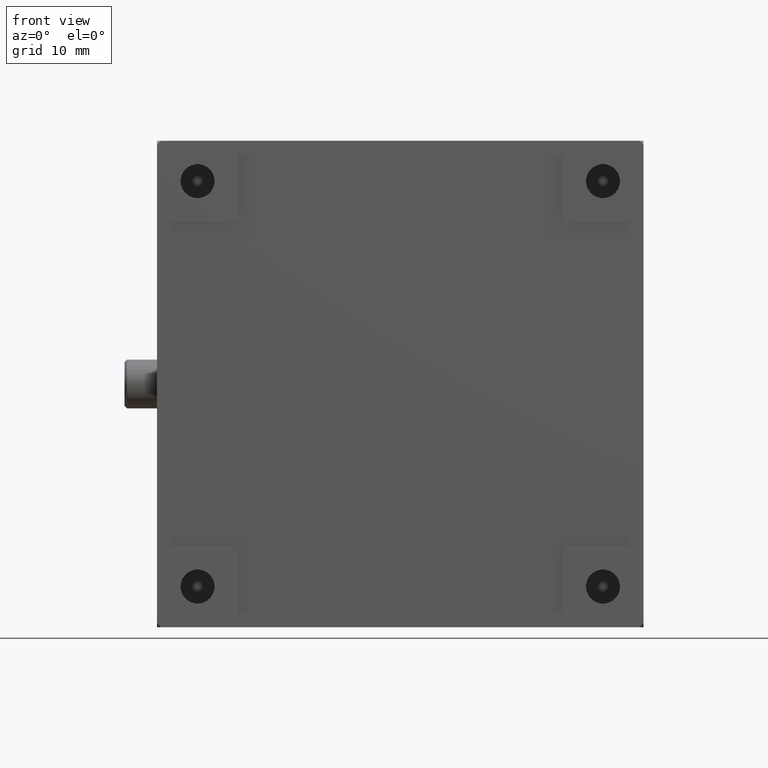
[diagram: clean part render]
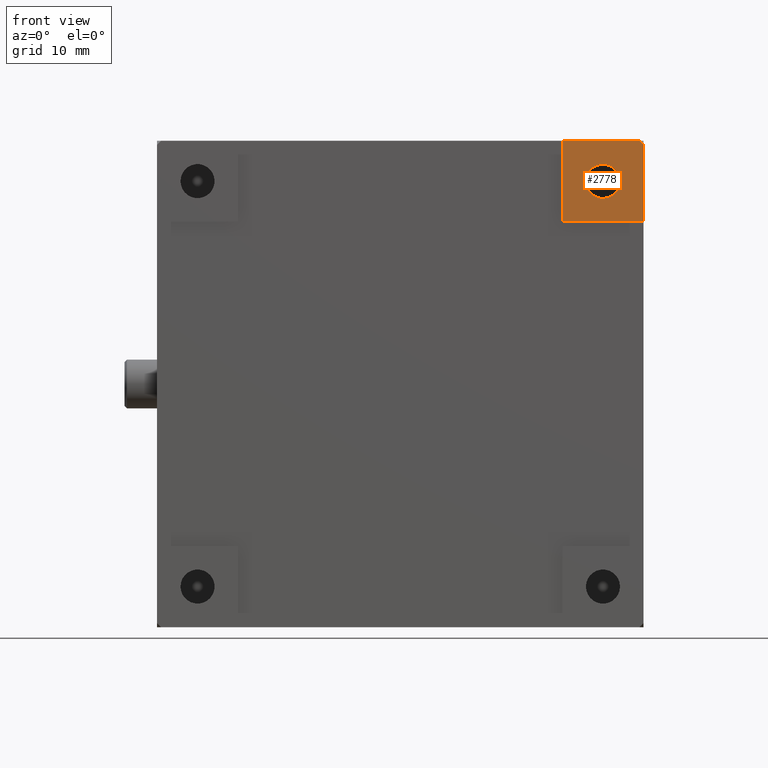
[diagram: same view with one face highlighted and labeled with its STEP entity id]
A machine part, front view. The second image highlights one B-rep face of the part: STEP entity #2778.
In plain terms, the highlighted planar face has unit normal (0, 1, 0).
Its self-contained STEP definition (entity closure, byte-faithful):
#73 = DIRECTION ( 'NONE',  ( 0.000000000000000000, 0.000000000000000000, 1.000000000000000000 ) ) ;
#87 = DIRECTION ( 'NONE',  ( 0.000000000000000000, 1.000000000000000000, 0.000000000000000000 ) ) ;
#382 = VECTOR ( 'NONE', #2096, 1000.000000000000114 ) ;
#406 = DIRECTION ( 'NONE',  ( -1.000000000000000000, 0.000000000000000000, 0.000000000000000000 ) ) ;
#531 = ORIENTED_EDGE ( 'NONE', *, *, #3130, .F. ) ;
#573 = CARTESIAN_POINT ( 'NONE',  ( 60.00000000000000000, 0.000000000000000000, 59.50000000000000711 ) ) ;
#653 = EDGE_LOOP ( 'NONE', ( #531, #2062, #769, #2783, #1738 ) ) ;
#698 = CARTESIAN_POINT ( 'NONE',  ( 0.000000000000000000, 0.000000000000000000, 0.000000000000000000 ) ) ;
#769 = ORIENTED_EDGE ( 'NONE', *, *, #1646, .T. ) ;
#911 = CARTESIAN_POINT ( 'NONE',  ( 50.00000000000000000, 0.000000000000000000, 60.00000000000000000 ) ) ;
#988 = CARTESIAN_POINT ( 'NONE',  ( 59.50000000000001421, -3.469446951953614189E-15, 60.00000000000000000 ) ) ;
#1008 = CARTESIAN_POINT ( 'NONE',  ( 55.00000000000000000, 0.000000000000000000, 55.00000000000000000 ) ) ;
#1034 = FACE_OUTER_BOUND ( 'NONE', #653, .T. ) ;
#1175 = CARTESIAN_POINT ( 'NONE',  ( 50.00000000000000000, 0.000000000000000000, 60.00000000000000000 ) ) ;
#1196 = CARTESIAN_POINT ( 'NONE',  ( 50.00000000000000000, 0.000000000000000000, 50.00000000000000000 ) ) ;
#1486 = EDGE_CURVE ( 'NONE', #2555, #3002, #1964, .T. ) ;
#1537 = LINE ( 'NONE', #911, #2309 ) ;
#1615 = ORIENTED_EDGE ( 'NONE', *, *, #1709, .F. ) ;
#1646 = EDGE_CURVE ( 'NONE', #3002, #3176, #2076, .T. ) ;
#1678 = CARTESIAN_POINT ( 'NONE',  ( 52.90000000000001279, 0.000000000000000000, 55.00000000000000000 ) ) ;
#1709 = EDGE_CURVE ( 'NONE', #3139, #3139, #3627, .T. ) ;
#1738 = ORIENTED_EDGE ( 'NONE', *, *, #3561, .F. ) ;
#1740 = CARTESIAN_POINT ( 'NONE',  ( 50.00000000000000000, 0.000000000000000000, 50.00000000000000000 ) ) ;
#1748 = EDGE_LOOP ( 'NONE', ( #1615 ) ) ;
#1794 = CARTESIAN_POINT ( 'NONE',  ( 59.50000000000000711, -6.938893903907228378E-15, 60.00000000000000000 ) ) ;
#1846 = LINE ( 'NONE', #1196, #3146 ) ;
#1849 = DIRECTION ( 'NONE',  ( -0.000000000000000000, -1.000000000000000000, -0.000000000000000000 ) ) ;
#1852 = DIRECTION ( 'NONE',  ( -1.000000000000000000, 0.000000000000000000, 0.000000000000000000 ) ) ;
#1871 = VERTEX_POINT ( 'NONE', #1175 ) ;
#1896 = AXIS2_PLACEMENT_3D ( 'NONE', #698, #87, #1852 ) ;
#1964 = LINE ( 'NONE', #573, #2916 ) ;
#2062 = ORIENTED_EDGE ( 'NONE', *, *, #1486, .T. ) ;
#2076 = LINE ( 'NONE', #1794, #382 ) ;
#2096 = DIRECTION ( 'NONE',  ( -0.7071067811865474617, 0.000000000000000000, 0.7071067811865474617 ) ) ;
#2227 = CARTESIAN_POINT ( 'NONE',  ( 60.00000000000000000, 0.000000000000000000, 50.00000000000000000 ) ) ;
#2309 = VECTOR ( 'NONE', #73, 1000.000000000000000 ) ;
#2326 = VERTEX_POINT ( 'NONE', #1740 ) ;
#2431 = LINE ( 'NONE', #3551, #2731 ) ;
#2555 = VERTEX_POINT ( 'NONE', #2227 ) ;
#2648 = DIRECTION ( 'NONE',  ( -1.000000000000000000, 0.000000000000000000, 0.000000000000000000 ) ) ;
#2731 = VECTOR ( 'NONE', #406, 1000.000000000000000 ) ;
#2778 = ADVANCED_FACE ( 'NONE', ( #1034, #3281 ), #3034, .F. ) ;
#2783 = ORIENTED_EDGE ( 'NONE', *, *, #2788, .T. ) ;
#2788 = EDGE_CURVE ( 'NONE', #3176, #1871, #2431, .T. ) ;
#2916 = VECTOR ( 'NONE', #3705, 1000.000000000000000 ) ;
#3002 = VERTEX_POINT ( 'NONE', #3720 ) ;
#3034 = PLANE ( 'NONE',  #1896 ) ;
#3093 = AXIS2_PLACEMENT_3D ( 'NONE', #1008, #1849, #3294 ) ;
#3130 = EDGE_CURVE ( 'NONE', #2555, #2326, #1846, .T. ) ;
#3139 = VERTEX_POINT ( 'NONE', #1678 ) ;
#3146 = VECTOR ( 'NONE', #2648, 1000.000000000000000 ) ;
#3176 = VERTEX_POINT ( 'NONE', #988 ) ;
#3281 = FACE_BOUND ( 'NONE', #1748, .T. ) ;
#3294 = DIRECTION ( 'NONE',  ( -1.000000000000000000, 0.000000000000000000, 0.000000000000000000 ) ) ;
#3551 = CARTESIAN_POINT ( 'NONE',  ( 0.5000000000000000000, 0.000000000000000000, 60.00000000000000000 ) ) ;
#3561 = EDGE_CURVE ( 'NONE', #2326, #1871, #1537, .T. ) ;
#3627 = CIRCLE ( 'NONE', #3093, 2.099999999999990763 ) ;
#3705 = DIRECTION ( 'NONE',  ( 0.000000000000000000, 0.000000000000000000, 1.000000000000000000 ) ) ;
#3720 = CARTESIAN_POINT ( 'NONE',  ( 60.00000000000000000, -1.734723475976807094E-15, 59.50000000000000000 ) ) ;